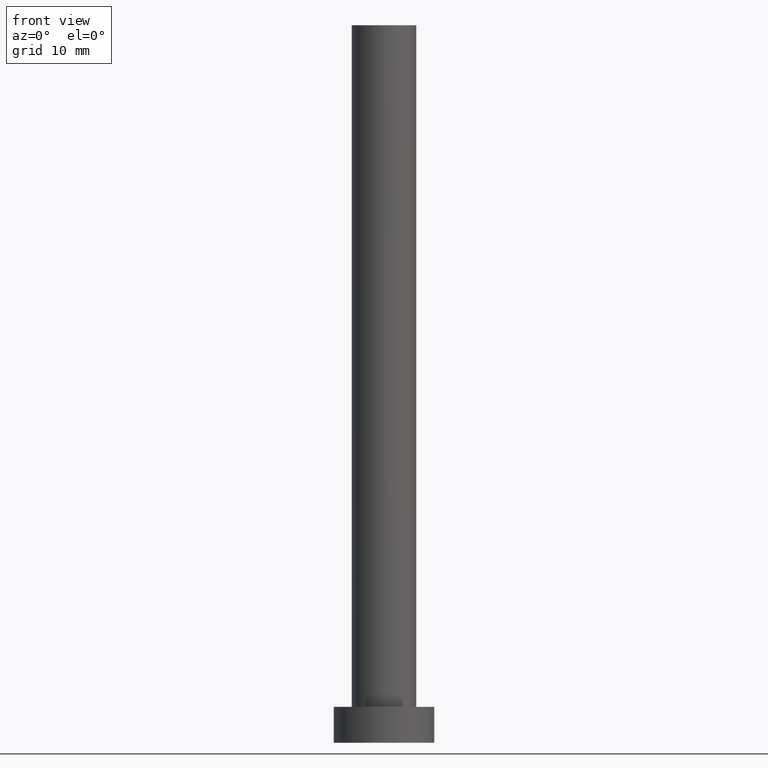
[diagram: clean part render]
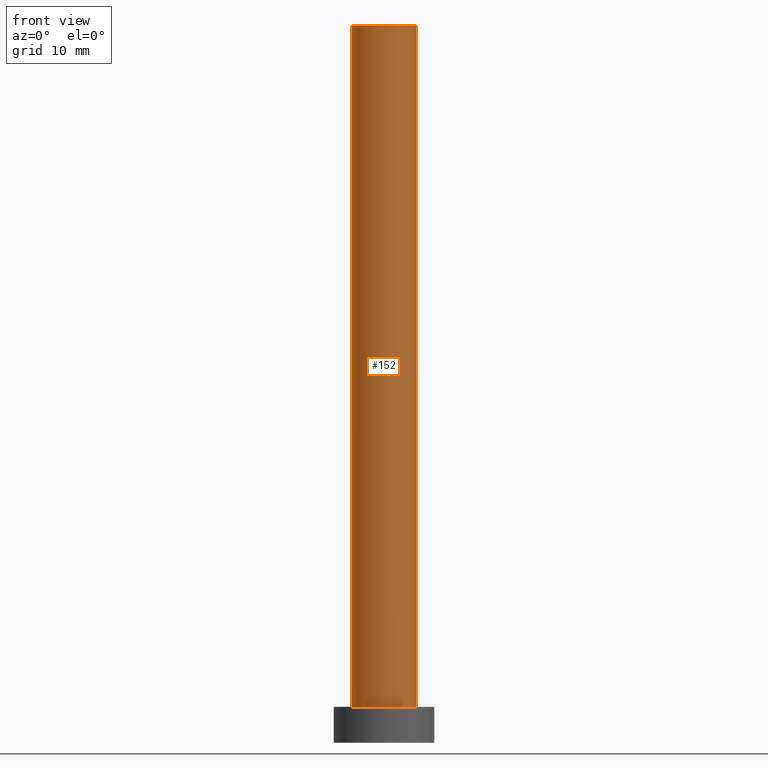
[diagram: same view with one face highlighted and labeled with its STEP entity id]
A machine part, front view. The second image highlights one B-rep face of the part: STEP entity #152.
In plain terms, the highlighted cylindrical surface (edge-blend (fillet) strip) has radius 4.5 mm, axis along (-0, -0, -1).
Its self-contained STEP definition (entity closure, byte-faithful):
#2 = AXIS2_PLACEMENT_3D ( 'NONE', #46, #243, #30 ) ;
#8 = FACE_OUTER_BOUND ( 'NONE', #244, .T. ) ;
#19 = CIRCLE ( 'NONE', #194, 4.500000000000000888 ) ;
#26 = CARTESIAN_POINT ( 'NONE',  ( 4.500000000000000888, 5.510910596163089556E-16, 100.0000000000000000 ) ) ;
#29 = CARTESIAN_POINT ( 'NONE',  ( -4.500000000000000888, 0.000000000000000000, 100.0000000000000000 ) ) ;
#30 = DIRECTION ( 'NONE',  ( -1.000000000000000000, 0.000000000000000000, 0.000000000000000000 ) ) ;
#34 = EDGE_CURVE ( 'NONE', #64, #83, #207, .T. ) ;
#39 = VERTEX_POINT ( 'NONE', #29 ) ;
#46 = CARTESIAN_POINT ( 'NONE',  ( 0.000000000000000000, 0.000000000000000000, 100.0000000000000000 ) ) ;
#50 = DIRECTION ( 'NONE',  ( 0.000000000000000000, 0.000000000000000000, 1.000000000000000000 ) ) ;
#51 = CARTESIAN_POINT ( 'NONE',  ( 4.500000000000000888, 5.510910596163089556E-16, 100.0000000000000000 ) ) ;
#53 = CARTESIAN_POINT ( 'NONE',  ( -4.500000000000000888, 0.000000000000000000, 5.000000000000000000 ) ) ;
#64 = VERTEX_POINT ( 'NONE', #26 ) ;
#67 = DIRECTION ( 'NONE',  ( 0.000000000000000000, 0.000000000000000000, 1.000000000000000000 ) ) ;
#70 = ORIENTED_EDGE ( 'NONE', *, *, #34, .F. ) ;
#71 = ORIENTED_EDGE ( 'NONE', *, *, #133, .T. ) ;
#73 = AXIS2_PLACEMENT_3D ( 'NONE', #206, #67, #126 ) ;
#83 = VERTEX_POINT ( 'NONE', #131 ) ;
#100 = VECTOR ( 'NONE', #233, 1000.000000000000000 ) ;
#102 = LINE ( 'NONE', #181, #100 ) ;
#115 = DIRECTION ( 'NONE',  ( -0.000000000000000000, -0.000000000000000000, -1.000000000000000000 ) ) ;
#122 = CIRCLE ( 'NONE', #73, 4.500000000000000888 ) ;
#126 = DIRECTION ( 'NONE',  ( 1.000000000000000000, 0.000000000000000000, 0.000000000000000000 ) ) ;
#128 = DIRECTION ( 'NONE',  ( 1.000000000000000000, 0.000000000000000000, 0.000000000000000000 ) ) ;
#129 = VECTOR ( 'NONE', #115, 1000.000000000000000 ) ;
#131 = CARTESIAN_POINT ( 'NONE',  ( 4.500000000000000888, 5.510910596163089556E-16, 5.000000000000000000 ) ) ;
#133 = EDGE_CURVE ( 'NONE', #39, #252, #102, .T. ) ;
#148 = EDGE_CURVE ( 'NONE', #252, #83, #19, .T. ) ;
#152 = ADVANCED_FACE ( 'NONE', ( #8 ), #165, .T. ) ;
#154 = ORIENTED_EDGE ( 'NONE', *, *, #148, .T. ) ;
#165 = CYLINDRICAL_SURFACE ( 'NONE', #2, 4.500000000000000888 ) ;
#172 = EDGE_CURVE ( 'NONE', #39, #64, #122, .T. ) ;
#181 = CARTESIAN_POINT ( 'NONE',  ( -4.500000000000000888, 0.000000000000000000, 100.0000000000000000 ) ) ;
#194 = AXIS2_PLACEMENT_3D ( 'NONE', #217, #50, #128 ) ;
#206 = CARTESIAN_POINT ( 'NONE',  ( 0.000000000000000000, 0.000000000000000000, 100.0000000000000000 ) ) ;
#207 = LINE ( 'NONE', #51, #129 ) ;
#217 = CARTESIAN_POINT ( 'NONE',  ( 0.000000000000000000, 0.000000000000000000, 5.000000000000000000 ) ) ;
#233 = DIRECTION ( 'NONE',  ( -0.000000000000000000, -0.000000000000000000, -1.000000000000000000 ) ) ;
#234 = ORIENTED_EDGE ( 'NONE', *, *, #172, .F. ) ;
#243 = DIRECTION ( 'NONE',  ( -0.000000000000000000, -0.000000000000000000, -1.000000000000000000 ) ) ;
#244 = EDGE_LOOP ( 'NONE', ( #70, #234, #71, #154 ) ) ;
#252 = VERTEX_POINT ( 'NONE', #53 ) ;